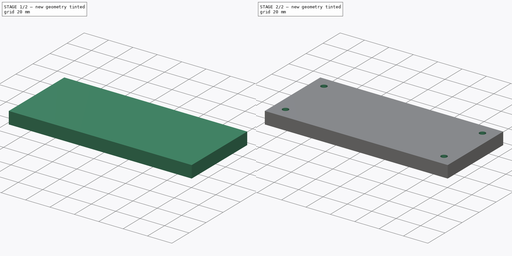
[diagram: build sequence overview — one tinted view per stage of 2, left to right]
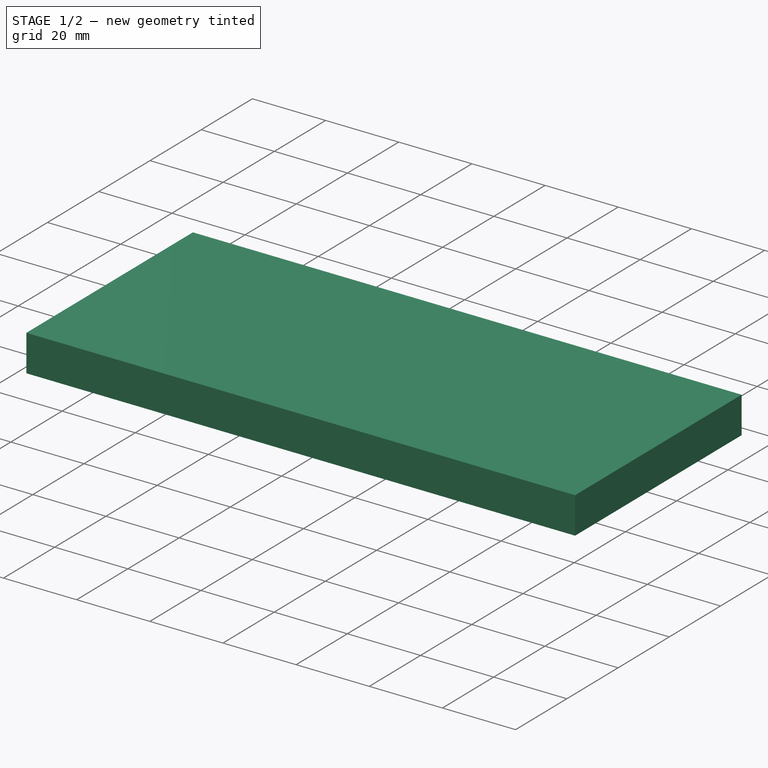
[diagram: stage 1 of 2 — iso view after this stage's code; geometry added in this stage tinted green]
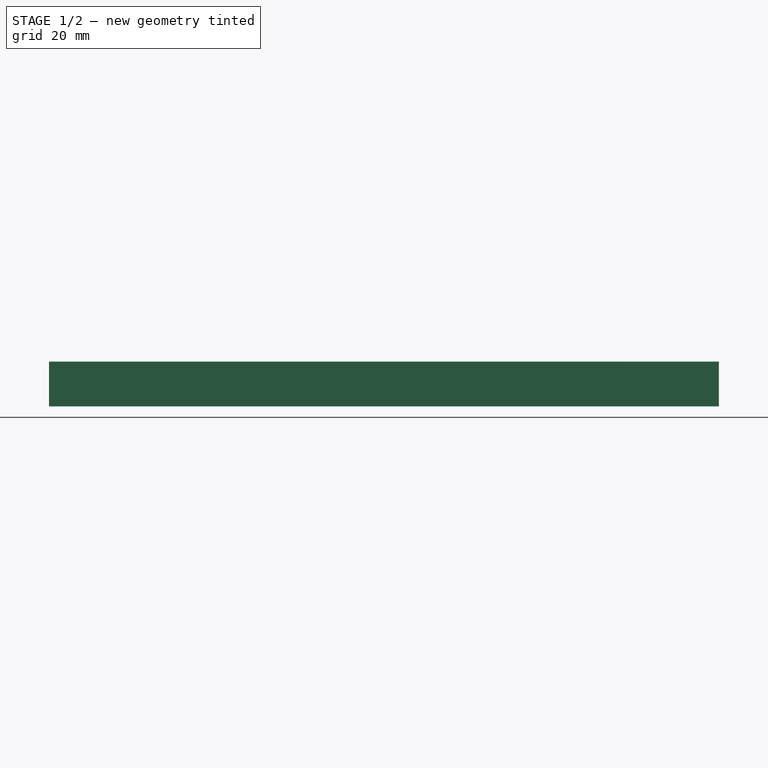
[diagram: stage 1 of 2 — front view after this stage's code; geometry added in this stage tinted green]
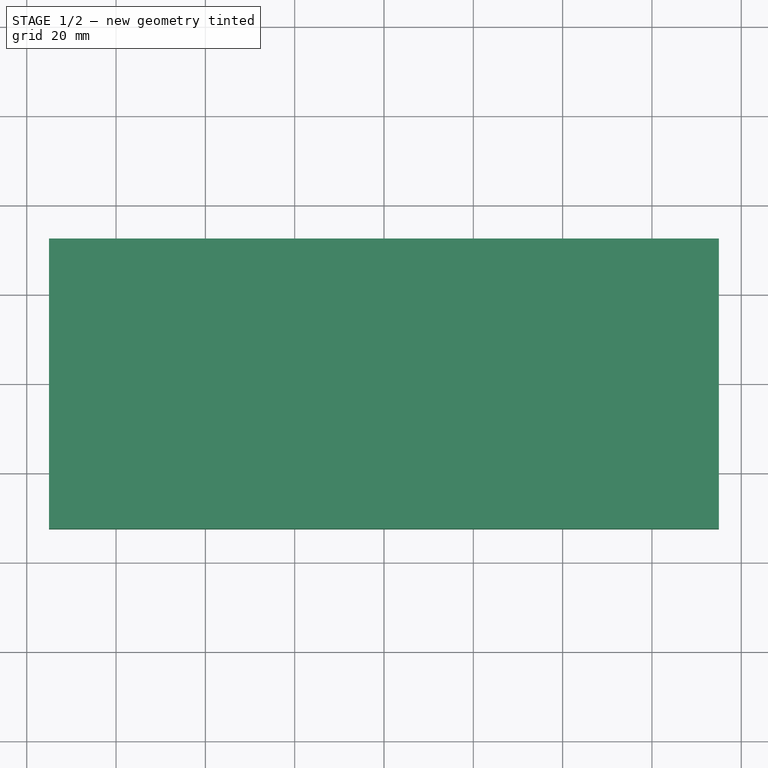
[diagram: stage 1 of 2 — top view after this stage's code; geometry added in this stage tinted green]
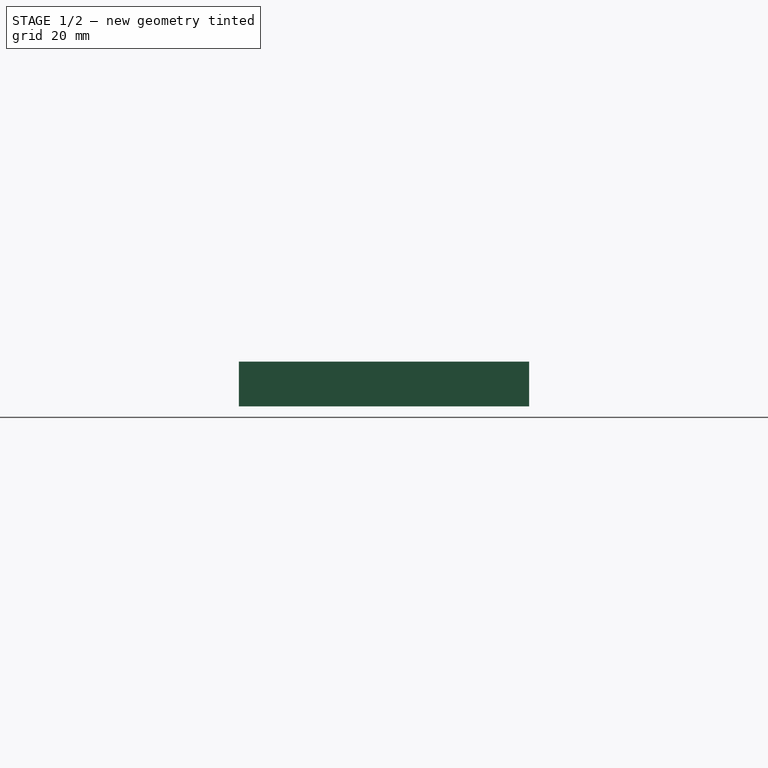
[diagram: stage 1 of 2 — right view after this stage's code; geometry added in this stage tinted green]
FCSTD DOCUMENT  (FreeCAD 0.18R16131 (Git))
Label: STAMPING_RIG_10x5
License: All rights reserved
LicenseURL: http://en.wikipedia.org/wiki/All_rights_reserved
objects: Sketcher::SketchObject×3, PartDesign::Pad×2, PartDesign::Hole×1, PartDesign::Body×1
note: 10 computed .brp shape members not serialized (recipe doc carries the construction recipe); baked Part::Feature solids carry a one-line shape summary decoded from their .brp

FEATURE [Sketcher::SketchObject] Sketch
  MapMode = 5
  Support = -> [XY_Plane]
  expr: Constraints[22] = 50 + 1
  expr: Constraints[14] = 100 + 1
  sketch-geometry (14):
    g0: LineSegment StartX=75 StartY=32.5 StartZ=0 EndX=75 EndY=-32.5 EndZ=0
    g1: LineSegment StartX=75 StartY=-32.5 StartZ=0 EndX=-75 EndY=-32.5 EndZ=0
    g2: LineSegment StartX=-75 StartY=-32.5 StartZ=0 EndX=-75 EndY=32.5 EndZ=0
    g3: LineSegment StartX=-50.5 StartY=25.5 StartZ=0 EndX=50.5 EndY=25.5 EndZ=0
    g4: LineSegment StartX=50.5 StartY=25.5 StartZ=0 EndX=50.5 EndY=-25.5 EndZ=0
    g5: LineSegment StartX=50.5 StartY=-25.5 StartZ=0 EndX=-50.5 EndY=-25.5 EndZ=0
    g6: LineSegment StartX=-50.5 StartY=-25.5 StartZ=0 EndX=-50.5 EndY=25.5 EndZ=0
    g7: LineSegment [constr] StartX=-50.5 StartY=25.5 StartZ=0 EndX=0 EndY=0 EndZ=0
    g8: LineSegment [constr] StartX=0 StartY=0 StartZ=0 EndX=50.5 EndY=25.5 EndZ=0
    g9: LineSegment [constr] StartX=0 StartY=0 StartZ=0 EndX=-50.5 EndY=-25.5 EndZ=0
    g10: LineSegment StartX=-75 StartY=32.5 StartZ=0 EndX=75 EndY=32.5 EndZ=0
    g11: LineSegment [constr] StartX=-75 StartY=32.5 StartZ=0 EndX=-50.5 EndY=25.5 EndZ=0
    g12: LineSegment [constr] StartX=-50.5 StartY=-25.5 StartZ=0 EndX=-75 EndY=-32.5 EndZ=0
    g13: LineSegment [constr] StartX=50.5 StartY=25.5 StartZ=0 EndX=75 EndY=32.5 EndZ=0
  constraints (36):
    c: Coincident(g0,g1)
    c: Coincident(g1,g2)
    c: Horizontal(g1)
    c: Vertical(g0)
    c: Vertical(g2)
    c: DistanceX(g2,g0) = 150
    c: Coincident(g3,g4)
    c: Coincident(g4,g5)
    c: Coincident(g5,g6)
    c: Coincident(g6,g3)
    c: Horizontal(g3)
    c: Horizontal(g5)
    c: Vertical(g4)
    c: Vertical(g6)
    c: DistanceX(g3,g3) = 101
    c: Coincident(g7,g3)
    c: Coincident(g8,g7)
    c: Coincident(g8,g3)
    c: Coincident(g9,g7)
    c: Coincident(g9,g5)
    c: Equal(g9,g7)
    c: Equal(g7,g8)
    c: DistanceY(g6,g6) = 51
    c: Horizontal(g10)
    c: DistanceY(g1,g10) = 65
    c: Coincident(g11,g10)
    c: Coincident(g11,g3)
    c: Coincident(g12,g5)
    c: Coincident(g12,g1)
    c: Equal(g11,g12)
    c: Coincident(g7,g-1)
    c: Coincident(g13,g3)
    c: Coincident(g13,g10)
    c: Equal(g13,g11)
    c: Coincident(g0,g10)
    c: Coincident(g2,g10)
FEATURE [PartDesign::Pad] Pad
  Length = 1.5
  Length2 = 100
  Profile = -> Sketch
  Type = 0
FEATURE [Sketcher::SketchObject] Sketch001
  ExternalGeometry = -> [Pad]
  MapMode = 5
  Placement = pos=(0,0,1.5) rot=(0,0,1;0rad)
  Support = -> [Pad]
  sketch-geometry (4):
    g0: LineSegment StartX=75 StartY=32.5 StartZ=0 EndX=-75 EndY=32.5 EndZ=0
    g1: LineSegment StartX=-75 StartY=32.5 StartZ=0 EndX=-75 EndY=-32.5 EndZ=0
    g2: LineSegment StartX=-75 StartY=-32.5 StartZ=0 EndX=75 EndY=-32.5 EndZ=0
    g3: LineSegment StartX=75 StartY=-32.5 StartZ=0 EndX=75 EndY=32.5 EndZ=0
  constraints (10):
    c: Coincident(g0,g1)
    c: Coincident(g1,g2)
    c: Coincident(g2,g3)
    c: Coincident(g3,g0)
    c: Horizontal(g0)
    c: Horizontal(g2)
    c: Vertical(g1)
    c: Vertical(g3)
    c: Coincident(g0,g-3)
    c: Coincident(g1,g-4)
FEATURE [PartDesign::Pad] Pad001
  BaseFeature = -> Pad
  Length = 8.5
  Length2 = 100
  Profile = -> Sketch001
  Refine = true
  Type = 0
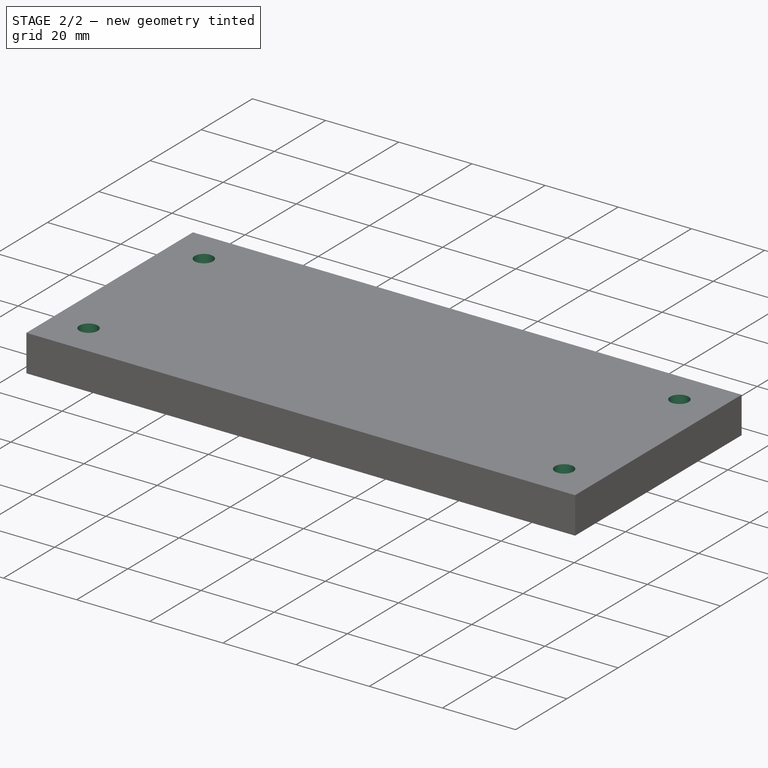
[diagram: stage 2 of 2 — iso view after this stage's code; geometry added in this stage tinted green]
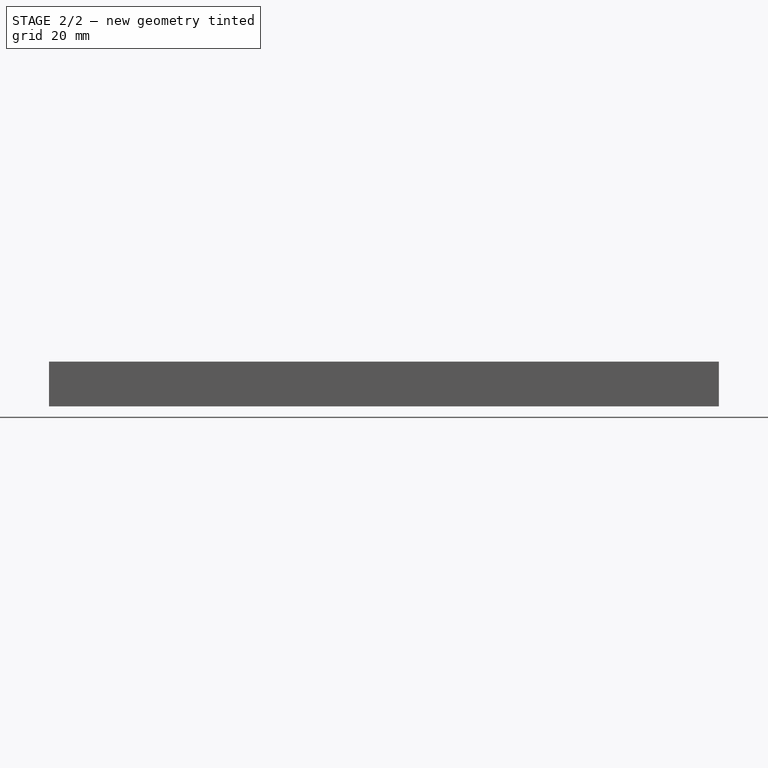
[diagram: stage 2 of 2 — front view after this stage's code; geometry added in this stage tinted green]
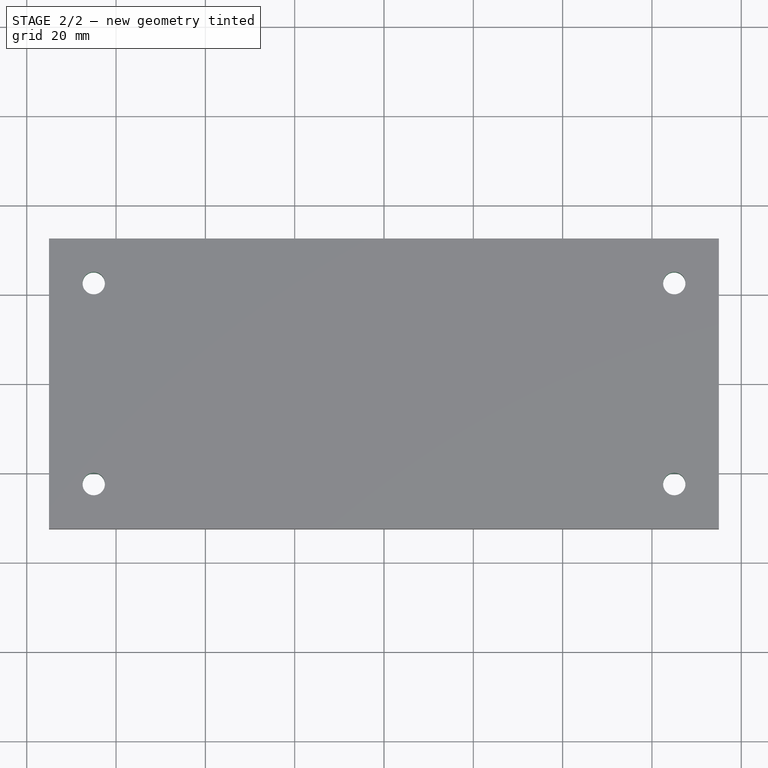
[diagram: stage 2 of 2 — top view after this stage's code; geometry added in this stage tinted green]
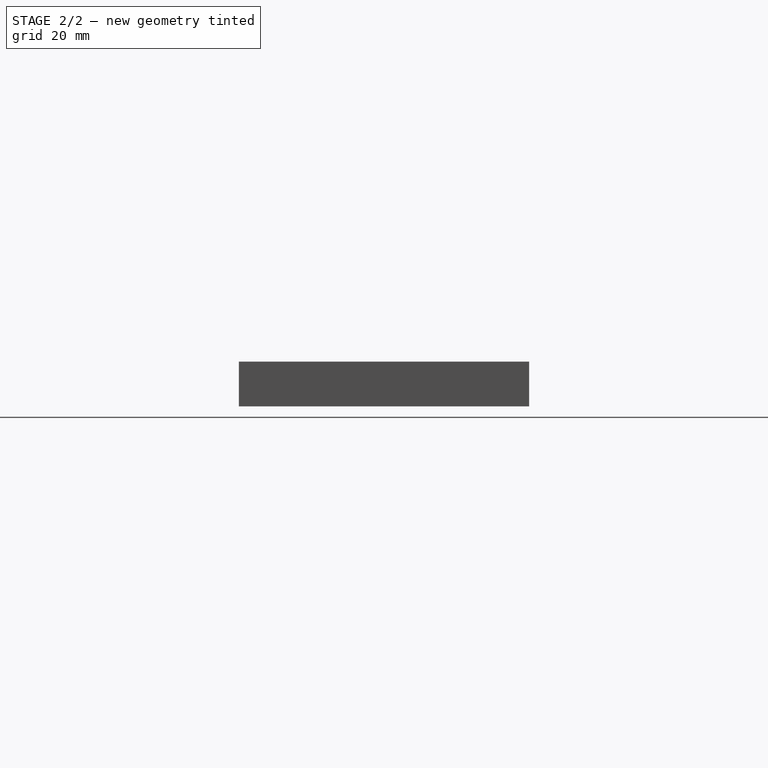
[diagram: stage 2 of 2 — right view after this stage's code; geometry added in this stage tinted green]
FEATURE [Sketcher::SketchObject] Sketch002
  ExternalGeometry = -> [Pad001]
  MapMode = 5
  Placement = pos=(0,0,0) rot=(1,0,0;3.14159rad)
  Support = -> [Pad001]
  sketch-geometry (4):
    g0: Circle CenterX=-65 CenterY=22.5 CenterZ=0 NormalX=0 NormalY=0 NormalZ=1 AngleXU=0 Radius=2.5
    g1: Circle CenterX=-65 CenterY=-22.5 CenterZ=0 NormalX=0 NormalY=0 NormalZ=1 AngleXU=0 Radius=2.5
    g2: Circle CenterX=65 CenterY=22.5 CenterZ=0 NormalX=0 NormalY=0 NormalZ=1 AngleXU=0 Radius=2.5
    g3: Circle CenterX=65 CenterY=-22.5 CenterZ=0 NormalX=0 NormalY=0 NormalZ=1 AngleXU=0 Radius=2.5
  constraints (12):
    c: DistanceX(g-4,g0) = 10
    c: DistanceY(g0,g-4) = 10
    c: DistanceX(g2,g-4) = 10
    c: DistanceY(g2,g-4) = 10
    c: DistanceX(g3,g-3) = 10
    c: DistanceY(g-3,g3) = 10
    c: DistanceY(g-3,g1) = 10
    c: DistanceX(g-3,g1) = 10
    c: Radius(g1) = 2.5
    c: Equal(g1,g0)
    c: Equal(g1,g2)
    c: Equal(g1,g3)
FEATURE [PartDesign::Hole] Hole
  BaseFeature = -> Pad001
  Depth = 25
  DepthType = 0
  Diameter = 5
  DrillPoint = 0
  DrillPointAngle = 118
  HoleCutCountersinkAngle = 90
  HoleCutDepth = 0
  HoleCutDiameter = 10
  HoleCutType = 2
  ModelActualThread = false
  Profile = -> Sketch002
  Tapered = false
  TaperedAngle = 90
  ThreadAngle = 0
  ThreadClass = 0
  ThreadCutOffInner = 0
  ThreadCutOffOuter = 0
  ThreadDirection = 0
  ThreadFit = 0
  ThreadPitch = 0
  ThreadSize = 0
  ThreadType = 0
  Threaded = false
FEATURE [PartDesign::Body] Body  label="Stamping jig"
  Group = -> [Sketch,Pad,Sketch001,Pad001,Sketch002,Hole]
  Origin = -> Origin
  Tip = -> Hole
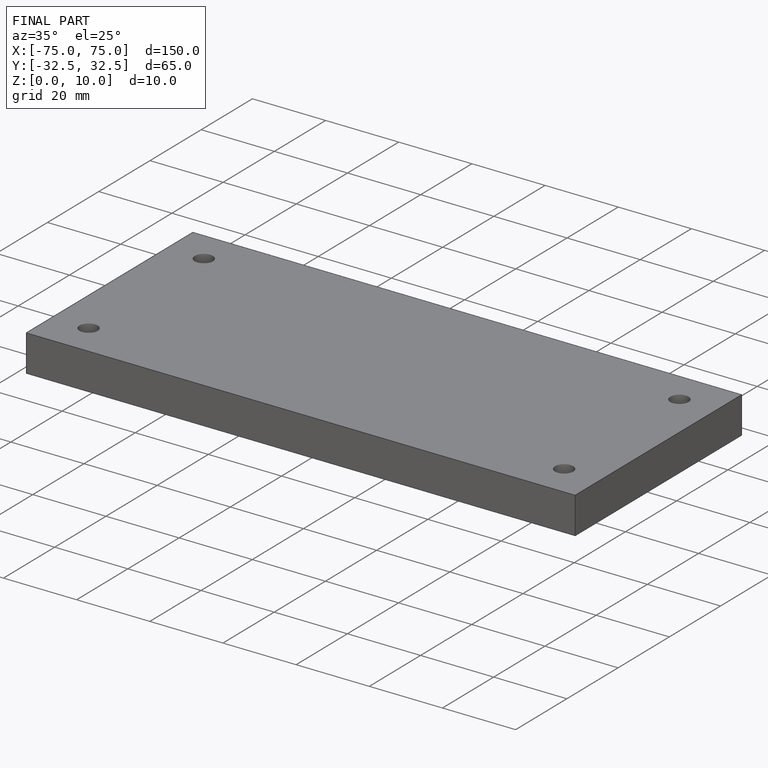
[diagram: finished part — iso view with bounding-box wireframe]
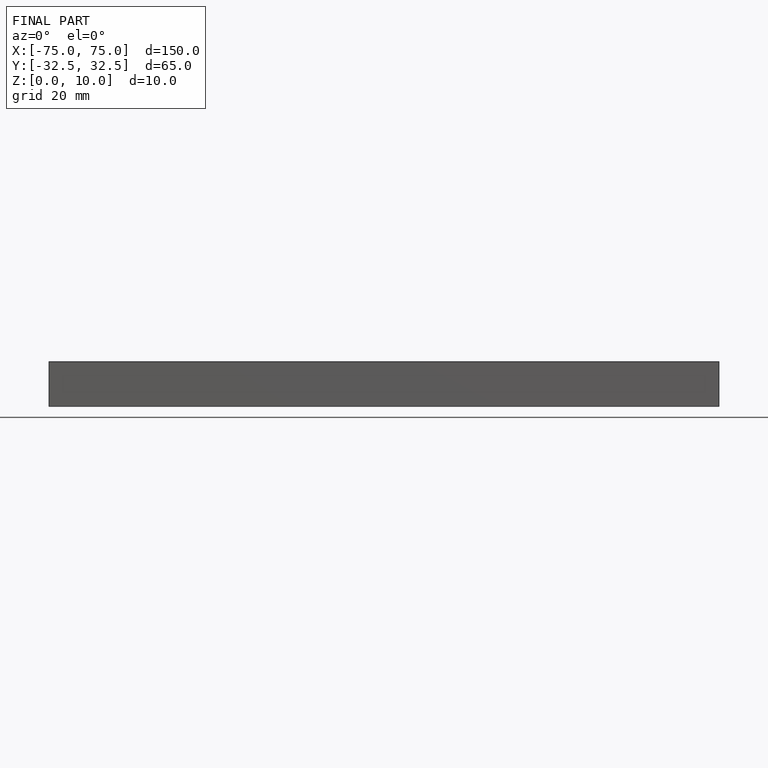
[diagram: finished part — front view with bounding-box wireframe]
